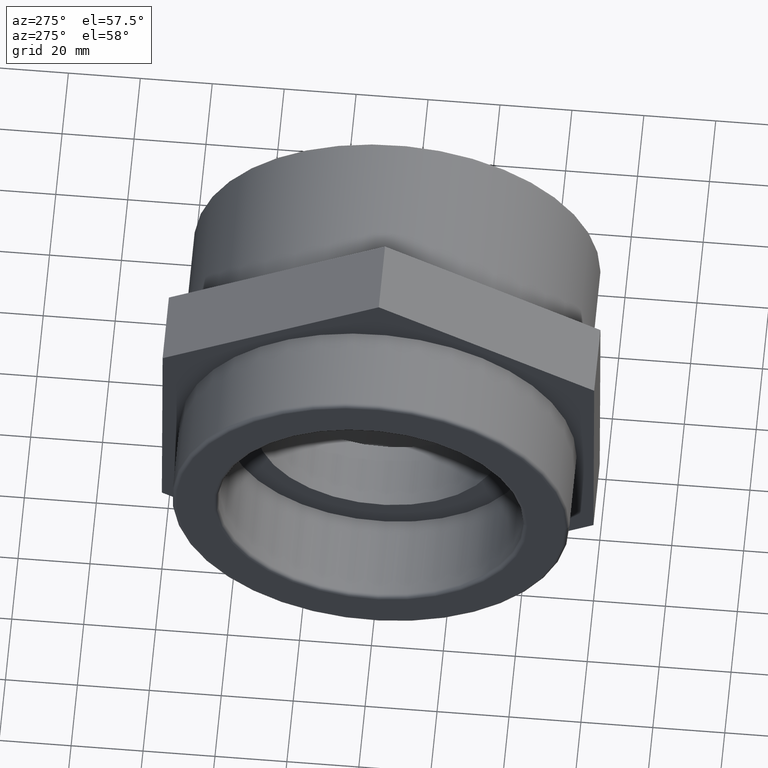
[diagram: clean part render]
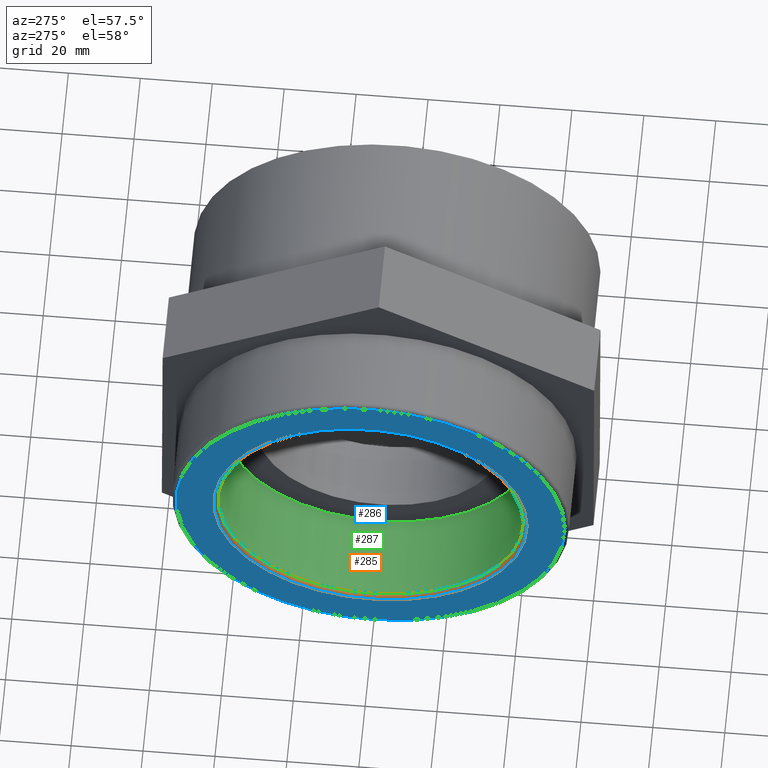
[diagram: same view with three faces highlighted in distinct colors, each labeled with its STEP entity id]
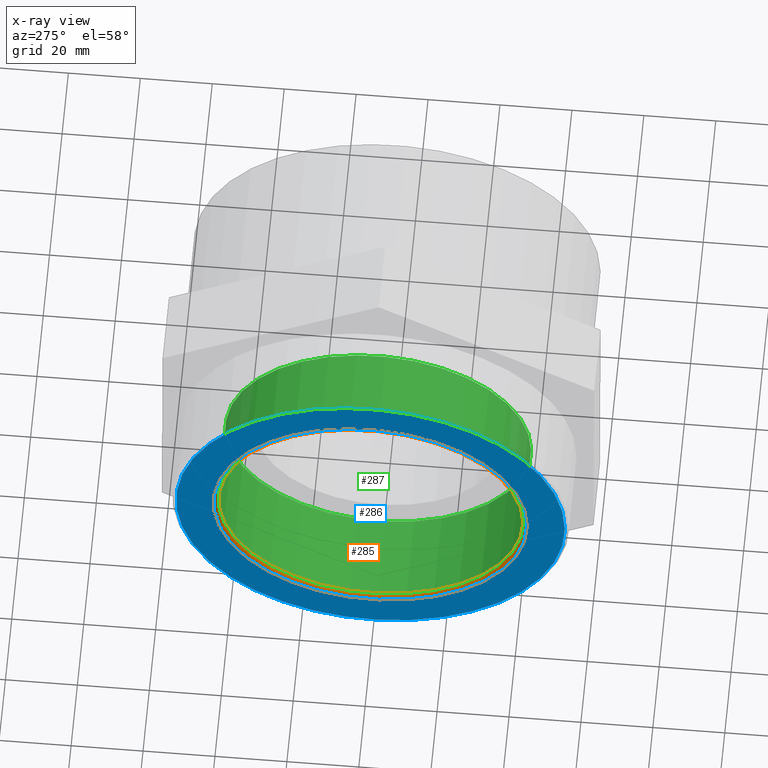
[diagram: x-ray of the same camera — body ghosted, the three highlighted faces saturated]
A machine part, auxiliary view with three faces highlighted in distinct colors.
The next image is the same camera in x-ray (body ghosted, the three faces saturated) — at least one of them is partly hidden behind the body in this view.
Their STEP definitions:

[orange] entity #285 — the highlighted toroidal blend (fillet) surface has major radius 43.5933 mm and minor (blend) radius 1.1303 mm.
#73=FACE_BOUND('',#115,.T.);
#88=FACE_OUTER_BOUND('',#114,.T.);
#114=EDGE_LOOP('',(#222));
#115=EDGE_LOOP('',(#223));
#146=CIRCLE('',#315,43.5933);
#147=CIRCLE('',#316,42.463);
#160=VERTEX_POINT('',#447);
#161=VERTEX_POINT('',#449);
#186=EDGE_CURVE('',#160,#160,#146,.T.);
#187=EDGE_CURVE('',#161,#161,#147,.T.);
#222=ORIENTED_EDGE('',*,*,#186,.T.);
#223=ORIENTED_EDGE('',*,*,#187,.T.);
#278=TOROIDAL_SURFACE('',#314,43.5933,1.1303);
#285=ADVANCED_FACE('',(#88,#73),#278,.T.);
#314=AXIS2_PLACEMENT_3D('',#446,#362,#363);
#315=AXIS2_PLACEMENT_3D('',#448,#364,#365);
#316=AXIS2_PLACEMENT_3D('',#450,#366,#367);
#362=DIRECTION('center_axis',(-1.,-1.83697019872103E-16,0.));
#363=DIRECTION('ref_axis',(0.,0.,1.));
#364=DIRECTION('center_axis',(-1.,-1.83697019872103E-16,0.));
#365=DIRECTION('ref_axis',(-1.83697019872103E-16,1.,6.12323399573677E-17));
#366=DIRECTION('center_axis',(1.,1.83697019872103E-16,0.));
#367=DIRECTION('ref_axis',(-1.83019597587926E-16,1.,6.12323399573676E-17));
#446=CARTESIAN_POINT('Origin',(-41.8697,2.07632741561437E-16,0.));
#447=CARTESIAN_POINT('',(-43.,-43.5933,2.66931976546352E-15));
#448=CARTESIAN_POINT('Origin',(-43.,-1.38666955995881E-30,0.));
#449=CARTESIAN_POINT('',(-41.8697,-42.463,-7.80032655482911E-15));
#450=CARTESIAN_POINT('Origin',(-41.8697,2.07632741561437E-16,0.));

[blue] entity #286 — the highlighted planar face has unit normal (-1, -0, 0).
#57=PLANE('',#317);
#74=FACE_BOUND('',#117,.T.);
#89=FACE_OUTER_BOUND('',#116,.T.);
#116=EDGE_LOOP('',(#224));
#117=EDGE_LOOP('',(#225));
#146=CIRCLE('',#315,43.5933);
#148=CIRCLE('',#318,54.0716);
#160=VERTEX_POINT('',#447);
#162=VERTEX_POINT('',#452);
#186=EDGE_CURVE('',#160,#160,#146,.T.);
#188=EDGE_CURVE('',#162,#162,#148,.T.);
#224=ORIENTED_EDGE('',*,*,#188,.F.);
#225=ORIENTED_EDGE('',*,*,#186,.F.);
#286=ADVANCED_FACE('',(#89,#74),#57,.T.);
#315=AXIS2_PLACEMENT_3D('',#448,#364,#365);
#317=AXIS2_PLACEMENT_3D('',#451,#368,#369);
#318=AXIS2_PLACEMENT_3D('',#453,#370,#371);
#364=DIRECTION('center_axis',(-1.,-1.83697019872103E-16,0.));
#365=DIRECTION('ref_axis',(-1.83697019872103E-16,1.,6.12323399573677E-17));
#368=DIRECTION('center_axis',(-1.,-1.83697019872103E-16,0.));
#369=DIRECTION('ref_axis',(0.,0.,1.));
#370=DIRECTION('center_axis',(1.,1.83697019872103E-16,0.));
#371=DIRECTION('ref_axis',(-1.83697019872103E-16,1.,6.12323399573677E-17));
#447=CARTESIAN_POINT('',(-43.,-43.5933,2.66931976546352E-15));
#448=CARTESIAN_POINT('Origin',(-43.,-1.38666955995881E-30,0.));
#451=CARTESIAN_POINT('Origin',(-43.,-42.463,0.));
#452=CARTESIAN_POINT('',(-43.,-54.0716,-9.93279177971641E-15));
#453=CARTESIAN_POINT('Origin',(-43.,-1.63318859284038E-30,0.));

[green] entity #287 — the highlighted cylindrical surface (bore or boss wall) has radius 42.463 mm, axis along (-1, -0, 0).
#53=CYLINDRICAL_SURFACE('',#319,42.463);
#75=FACE_BOUND('',#119,.T.);
#90=FACE_OUTER_BOUND('',#118,.T.);
#118=EDGE_LOOP('',(#226));
#119=EDGE_LOOP('',(#227));
#147=CIRCLE('',#316,42.463);
#149=CIRCLE('',#320,42.463);
#161=VERTEX_POINT('',#449);
#163=VERTEX_POINT('',#455);
#187=EDGE_CURVE('',#161,#161,#147,.T.);
#189=EDGE_CURVE('',#163,#163,#149,.T.);
#226=ORIENTED_EDGE('',*,*,#189,.F.);
#227=ORIENTED_EDGE('',*,*,#187,.F.);
#287=ADVANCED_FACE('',(#90,#75),#53,.F.);
#316=AXIS2_PLACEMENT_3D('',#450,#366,#367);
#319=AXIS2_PLACEMENT_3D('',#454,#372,#373);
#320=AXIS2_PLACEMENT_3D('',#456,#374,#375);
#366=DIRECTION('center_axis',(1.,1.83697019872103E-16,0.));
#367=DIRECTION('ref_axis',(-1.83019597587926E-16,1.,6.12323399573676E-17));
#372=DIRECTION('center_axis',(-1.,-1.83697019872103E-16,0.));
#373=DIRECTION('ref_axis',(2.09165254386201E-16,-1.,0.));
#374=DIRECTION('center_axis',(-1.,-1.83697019872103E-16,0.));
#375=DIRECTION('ref_axis',(0.,0.,1.));
#449=CARTESIAN_POINT('',(-41.8697,-42.463,-7.80032655482911E-15));
#450=CARTESIAN_POINT('Origin',(-41.8697,2.07632741561437E-16,0.));
#454=CARTESIAN_POINT('Origin',(-30.5,2.29621274840129E-15,0.));
#455=CARTESIAN_POINT('',(-18.,-42.463,0.));
#456=CARTESIAN_POINT('Origin',(-18.,4.59242549680257E-15,0.));